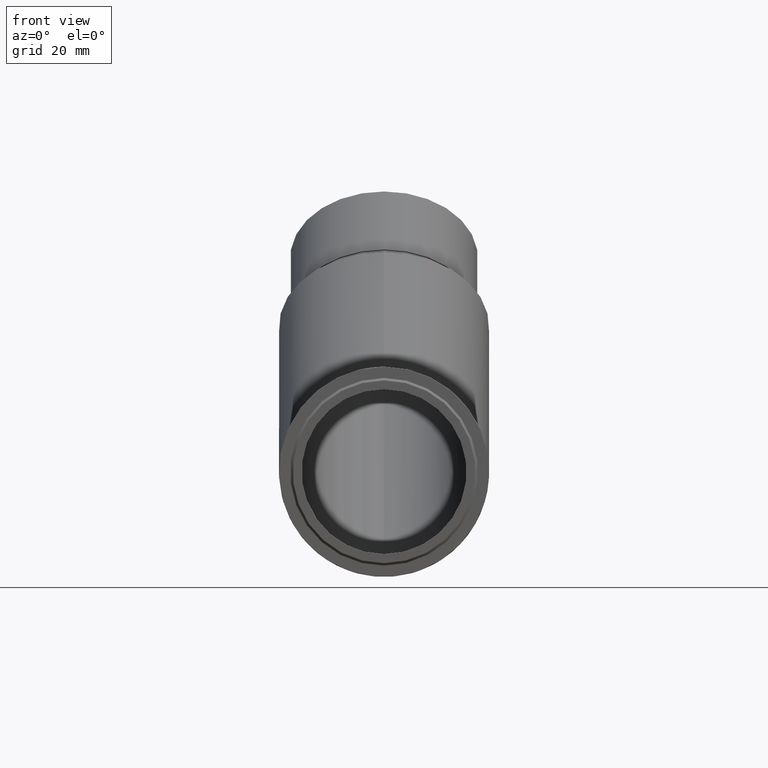
[diagram: clean part render]
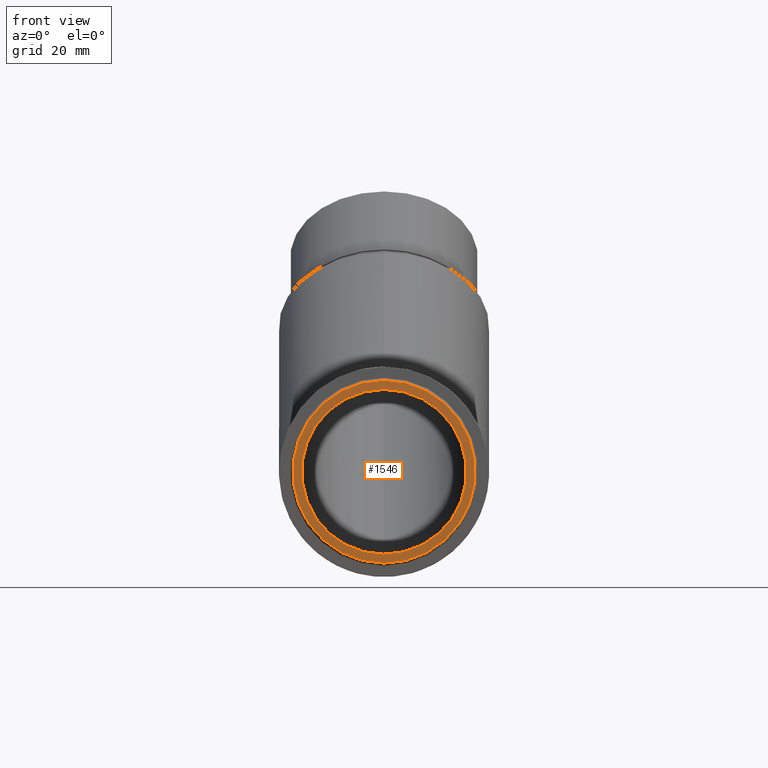
[diagram: same view with one face highlighted and labeled with its STEP entity id]
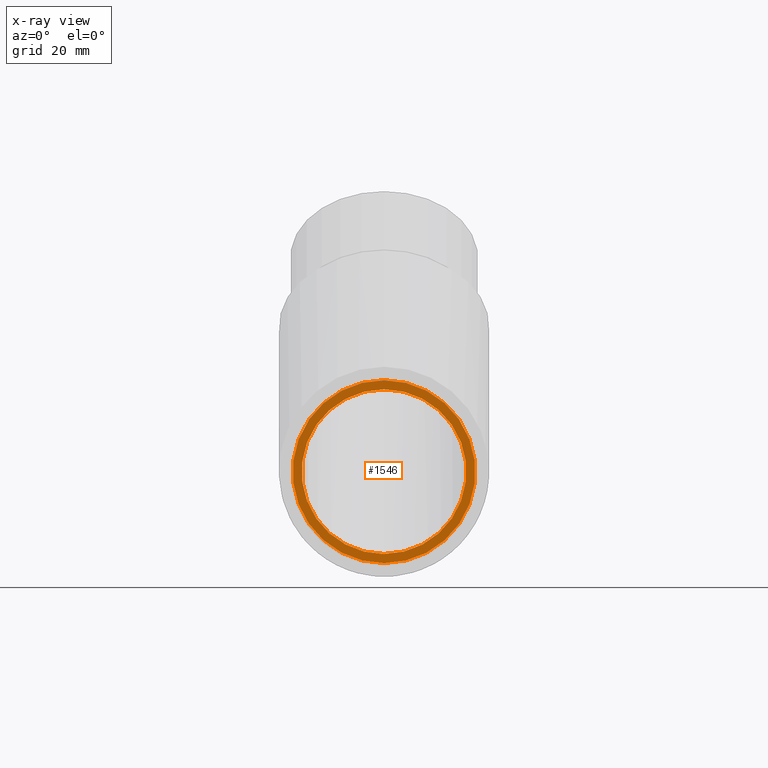
[diagram: x-ray of the same camera — body ghosted, the highlighted face saturated]
A machine part, front view. The second image highlights one B-rep face of the part: STEP entity #1546.
The next image is the same camera in x-ray: the body ghosted, the highlighted face saturated — about 0% of this face is hidden behind the body in this view.
In plain terms, the highlighted planar face has unit normal (0, -1, 0).
Its self-contained STEP definition (entity closure, byte-faithful):
#97 = FACE_OUTER_BOUND ( 'NONE', #9607, .T. ) ;
#177 = DIRECTION ( 'NONE',  ( 0.0000000000000000000, 0.0000000000000000000, -1.000000000000000000 ) ) ;
#1546 = ADVANCED_FACE ( 'NONE', ( #97, #1715 ), #11911, .T. ) ;
#1552 = DIRECTION ( 'NONE',  ( 0.0000000000000000000, -1.000000000000000000, 0.0000000000000000000 ) ) ;
#1715 = FACE_BOUND ( 'NONE', #2198, .T. ) ;
#2198 = EDGE_LOOP ( 'NONE', ( #12037 ) ) ;
#2570 = ORIENTED_EDGE ( 'NONE', *, *, #4054, .T. ) ;
#2853 = CIRCLE ( 'NONE', #10751, 16.55000000000000100 ) ;
#3158 = VERTEX_POINT ( 'NONE', #10551 ) ;
#3177 = DIRECTION ( 'NONE',  ( 0.0000000000000000000, -1.000000000000000000, 0.0000000000000000000 ) ) ;
#3304 = VERTEX_POINT ( 'NONE', #4357 ) ;
#3559 = CARTESIAN_POINT ( 'NONE',  ( 0.0000000000000000000, -20.00000000000000000, 0.0000000000000000000 ) ) ;
#4054 = EDGE_CURVE ( 'NONE', #3158, #3158, #6290, .T. ) ;
#4357 = CARTESIAN_POINT ( 'NONE',  ( 0.0000000000000000000, -20.00000000000000000, -16.55000000000000100 ) ) ;
#6290 = CIRCLE ( 'NONE', #10051, 18.34999999999999100 ) ;
#6461 = CARTESIAN_POINT ( 'NONE',  ( 0.0000000000000000000, -20.00000000000000000, 0.0000000000000000000 ) ) ;
#6723 = DIRECTION ( 'NONE',  ( 0.0000000000000000000, 0.0000000000000000000, -1.000000000000000000 ) ) ;
#7392 = EDGE_CURVE ( 'NONE', #3304, #3304, #2853, .T. ) ;
#8030 = CARTESIAN_POINT ( 'NONE',  ( 0.0000000000000000000, -20.00000000000000000, 0.0000000000000000000 ) ) ;
#9607 = EDGE_LOOP ( 'NONE', ( #2570 ) ) ;
#10051 = AXIS2_PLACEMENT_3D ( 'NONE', #3559, #1552, #6723 ) ;
#10209 = DIRECTION ( 'NONE',  ( 0.0000000000000000000, -1.000000000000000000, 0.0000000000000000000 ) ) ;
#10551 = CARTESIAN_POINT ( 'NONE',  ( 0.0000000000000000000, -20.00000000000000000, -18.34999999999999100 ) ) ;
#10751 = AXIS2_PLACEMENT_3D ( 'NONE', #6461, #3177, #177 ) ;
#11173 = DIRECTION ( 'NONE',  ( 0.0000000000000000000, -0.0000000000000000000, -1.000000000000000000 ) ) ;
#11911 = PLANE ( 'NONE',  #12744 ) ;
#12037 = ORIENTED_EDGE ( 'NONE', *, *, #7392, .F. ) ;
#12744 = AXIS2_PLACEMENT_3D ( 'NONE', #8030, #10209, #11173 ) ;